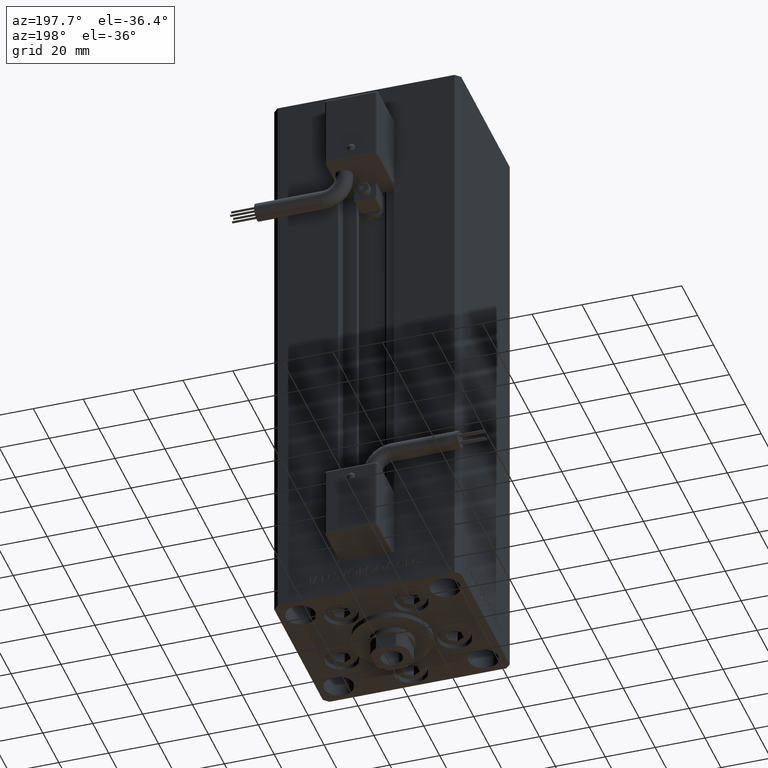
[diagram: clean part render]
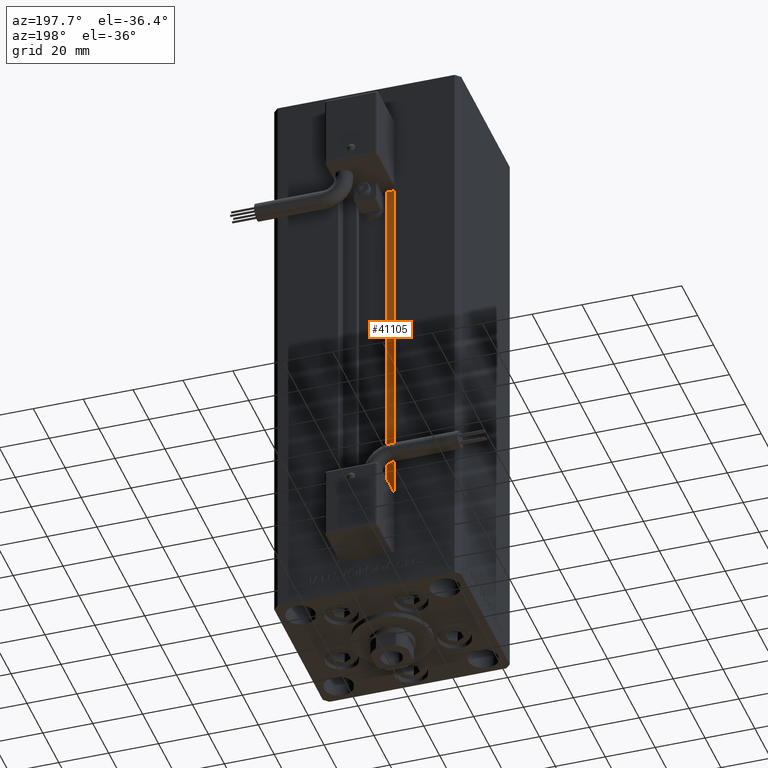
[diagram: same view with one face highlighted and labeled with its STEP entity id]
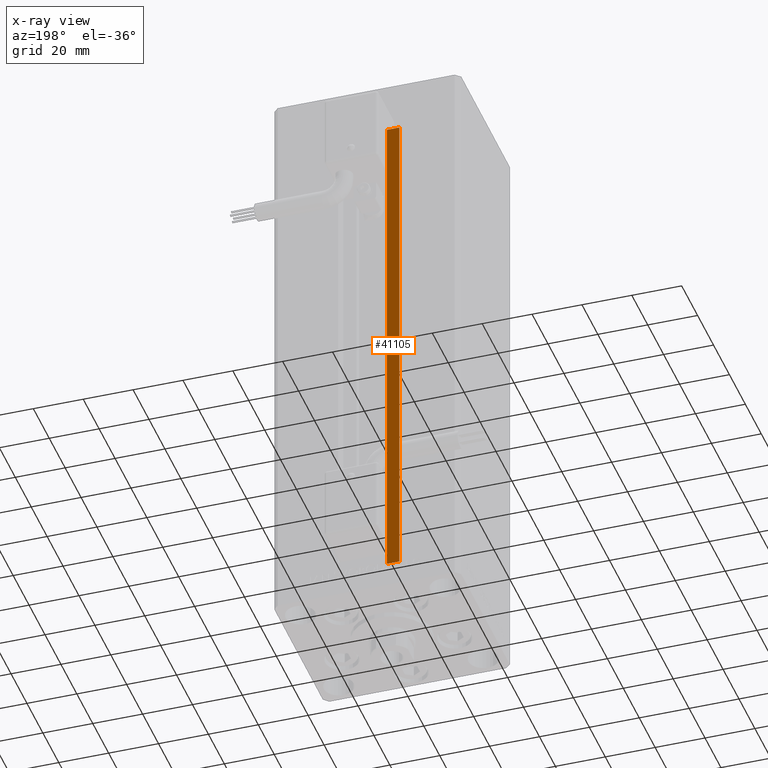
[diagram: x-ray of the same camera — body ghosted, the highlighted face saturated]
A machine part, auxiliary view. The second image highlights one B-rep face of the part: STEP entity #41105.
The next image is the same camera in x-ray: the body ghosted, the highlighted face saturated — about 0% of this face is hidden behind the body in this view.
In plain terms, the highlighted planar face has unit normal (0, -1, 0).
Its self-contained STEP definition (entity closure, byte-faithful):
#17 = ORIENTED_EDGE ( 'NONE', *, *, #10087, .F. ) ;
#1030 = DIRECTION ( 'NONE',  ( 0.000000000000000000, -1.000000000000000000, -0.000000000000000000 ) ) ;
#4359 = CARTESIAN_POINT ( 'NONE',  ( 0.000000000000000000, 25.99999999999999289, 206.0000000000000000 ) ) ;
#4556 = ORIENTED_EDGE ( 'NONE', *, *, #8045, .F. ) ;
#4717 = AXIS2_PLACEMENT_3D ( 'NONE', #40974, #1030, #25212 ) ;
#4964 = PLANE ( 'NONE',  #4717 ) ;
#7387 = VERTEX_POINT ( 'NONE', #14055 ) ;
#8045 = EDGE_CURVE ( 'NONE', #23371, #7387, #8698, .T. ) ;
#8423 = LINE ( 'NONE', #20774, #41047 ) ;
#8698 = LINE ( 'NONE', #21563, #17553 ) ;
#10087 = EDGE_CURVE ( 'NONE', #7387, #40756, #8423, .T. ) ;
#12855 = FACE_OUTER_BOUND ( 'NONE', #17509, .T. ) ;
#14055 = CARTESIAN_POINT ( 'NONE',  ( -6.183333333334001480, 25.99999999999999289, 0.000000000000000000 ) ) ;
#15111 = CARTESIAN_POINT ( 'NONE',  ( -11.25000000000000178, 25.99999999999999289, 0.000000000000000000 ) ) ;
#15363 = CARTESIAN_POINT ( 'NONE',  ( -11.25000000000000178, 25.99999999999999289, 0.000000000000000000 ) ) ;
#16057 = DIRECTION ( 'NONE',  ( -0.000000000000000000, -0.000000000000000000, 1.000000000000000000 ) ) ;
#17111 = DIRECTION ( 'NONE',  ( 1.000000000000000000, -0.000000000000000000, -0.000000000000000000 ) ) ;
#17509 = EDGE_LOOP ( 'NONE', ( #17, #4556, #45761, #24209 ) ) ;
#17553 = VECTOR ( 'NONE', #17111, 1000.000000000000000 ) ;
#20774 = CARTESIAN_POINT ( 'NONE',  ( -6.183333333334001480, 25.99999999999999289, 0.000000000000000000 ) ) ;
#20852 = CARTESIAN_POINT ( 'NONE',  ( -6.183333333334001480, 25.99999999999999289, 206.0000000000000000 ) ) ;
#21563 = CARTESIAN_POINT ( 'NONE',  ( -6.183333333334001480, 25.99999999999999289, 0.000000000000000000 ) ) ;
#23371 = VERTEX_POINT ( 'NONE', #15363 ) ;
#23431 = EDGE_CURVE ( 'NONE', #23371, #40795, #51081, .T. ) ;
#24209 = ORIENTED_EDGE ( 'NONE', *, *, #48707, .F. ) ;
#25212 = DIRECTION ( 'NONE',  ( 0.000000000000000000, 0.000000000000000000, -1.000000000000000000 ) ) ;
#27125 = VECTOR ( 'NONE', #31148, 1000.000000000000000 ) ;
#30754 = CARTESIAN_POINT ( 'NONE',  ( -11.25000000000000178, 25.99999999999999289, 206.0000000000000000 ) ) ;
#31148 = DIRECTION ( 'NONE',  ( -0.000000000000000000, -0.000000000000000000, 1.000000000000000000 ) ) ;
#32565 = VECTOR ( 'NONE', #33525, 1000.000000000000000 ) ;
#33525 = DIRECTION ( 'NONE',  ( -1.000000000000000000, 0.000000000000000000, 0.000000000000000000 ) ) ;
#40756 = VERTEX_POINT ( 'NONE', #20852 ) ;
#40795 = VERTEX_POINT ( 'NONE', #30754 ) ;
#40974 = CARTESIAN_POINT ( 'NONE',  ( -6.183333333334001480, 25.99999999999999289, 0.000000000000000000 ) ) ;
#41047 = VECTOR ( 'NONE', #16057, 1000.000000000000000 ) ;
#41105 = ADVANCED_FACE ( 'NONE', ( #12855 ), #4964, .F. ) ;
#45761 = ORIENTED_EDGE ( 'NONE', *, *, #23431, .T. ) ;
#48493 = LINE ( 'NONE', #4359, #32565 ) ;
#48707 = EDGE_CURVE ( 'NONE', #40756, #40795, #48493, .T. ) ;
#51081 = LINE ( 'NONE', #15111, #27125 ) ;